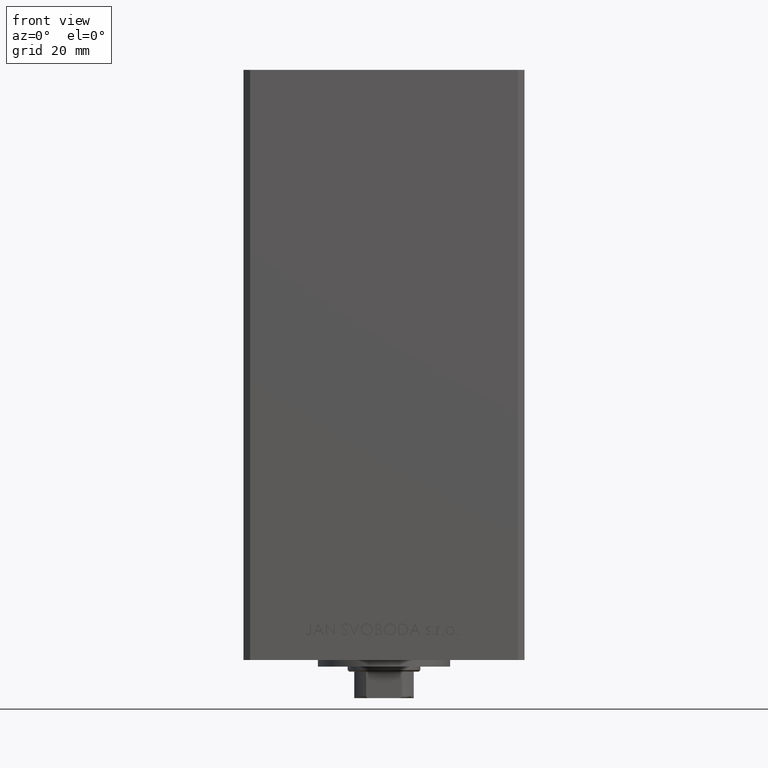
[diagram: clean part render]
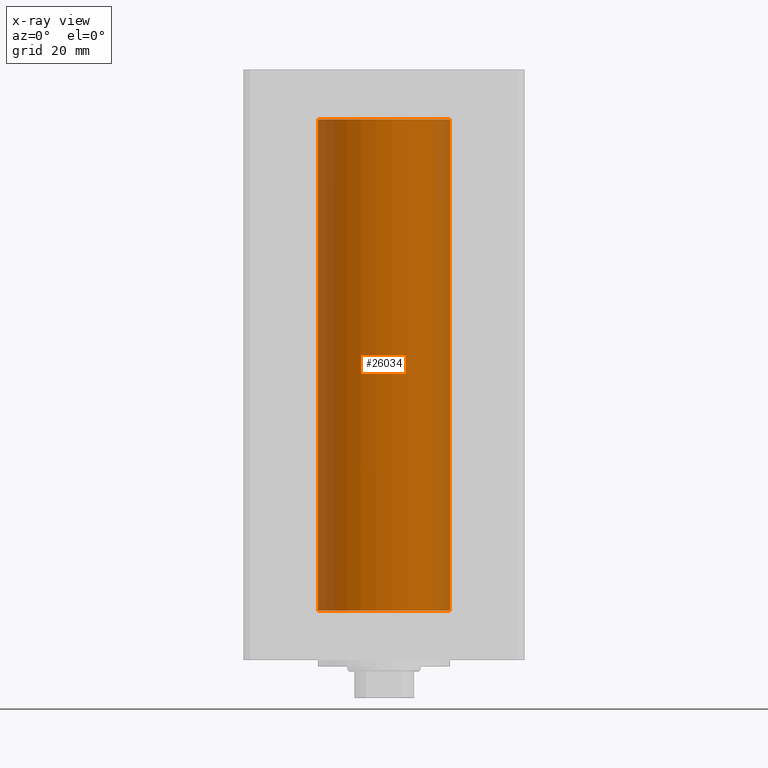
[diagram: x-ray — body ghosted, one internal face saturated and labeled with its STEP entity id]
A machine part, front view, then the same camera in x-ray: the body is ghosted and one INTERNAL B-rep face — a face not visible from any outside direction — is saturated and labeled: STEP entity #26034.
In plain terms, the highlighted cylindrical surface (partial cylindrical patch) has radius 20 mm, axis along (-0, -0, -1).
Its self-contained STEP definition (entity closure, byte-faithful):
#1171 = CIRCLE ( 'NONE', #7494, 20.00000000000000000 ) ;
#4625 = CYLINDRICAL_SURFACE ( 'NONE', #8273, 20.00000000000000000 ) ;
#5463 = CARTESIAN_POINT ( 'NONE',  ( 20.00000000000000000, 2.449293598294706513E-15, 148.5000000000000000 ) ) ;
#6032 = DIRECTION ( 'NONE',  ( -0.000000000000000000, 0.000000000000000000, 1.000000000000000000 ) ) ;
#6454 = EDGE_CURVE ( 'NONE', #19497, #32985, #27859, .T. ) ;
#6959 = CARTESIAN_POINT ( 'NONE',  ( -20.00000000000000000, 0.000000000000000000, 148.5000000000000000 ) ) ;
#7194 = DIRECTION ( 'NONE',  ( -0.000000000000000000, -0.000000000000000000, -1.000000000000000000 ) ) ;
#7494 = AXIS2_PLACEMENT_3D ( 'NONE', #26214, #11119, #30660 ) ;
#8109 = CARTESIAN_POINT ( 'NONE',  ( 0.000000000000000000, 0.000000000000000000, 148.5000000000000000 ) ) ;
#8163 = VECTOR ( 'NONE', #37984, 1000.000000000000000 ) ;
#8273 = AXIS2_PLACEMENT_3D ( 'NONE', #8109, #38290, #48698 ) ;
#9440 = CARTESIAN_POINT ( 'NONE',  ( -20.00000000000000000, 0.000000000000000000, 0.000000000000000000 ) ) ;
#10676 = LINE ( 'NONE', #6959, #26695 ) ;
#11119 = DIRECTION ( 'NONE',  ( -0.000000000000000000, 0.000000000000000000, 1.000000000000000000 ) ) ;
#11525 = LINE ( 'NONE', #12001, #8163 ) ;
#12001 = CARTESIAN_POINT ( 'NONE',  ( 20.00000000000000000, 2.449293598294706513E-15, 148.5000000000000000 ) ) ;
#14168 = CARTESIAN_POINT ( 'NONE',  ( -20.00000000000000000, 0.000000000000000000, 148.5000000000000000 ) ) ;
#17362 = VERTEX_POINT ( 'NONE', #9440 ) ;
#19237 = FACE_OUTER_BOUND ( 'NONE', #44570, .T. ) ;
#19497 = VERTEX_POINT ( 'NONE', #14168 ) ;
#20352 = VERTEX_POINT ( 'NONE', #33817 ) ;
#26034 = ADVANCED_FACE ( 'NONE', ( #19237 ), #4625, .F. ) ;
#26214 = CARTESIAN_POINT ( 'NONE',  ( 0.000000000000000000, 0.000000000000000000, 0.000000000000000000 ) ) ;
#26695 = VECTOR ( 'NONE', #7194, 1000.000000000000000 ) ;
#27088 = AXIS2_PLACEMENT_3D ( 'NONE', #44633, #6032, #47600 ) ;
#27859 = CIRCLE ( 'NONE', #27088, 20.00000000000000000 ) ;
#29220 = EDGE_CURVE ( 'NONE', #17362, #20352, #1171, .T. ) ;
#30403 = ORIENTED_EDGE ( 'NONE', *, *, #36889, .F. ) ;
#30660 = DIRECTION ( 'NONE',  ( 1.000000000000000000, 0.000000000000000000, 0.000000000000000000 ) ) ;
#32985 = VERTEX_POINT ( 'NONE', #5463 ) ;
#33817 = CARTESIAN_POINT ( 'NONE',  ( 20.00000000000000000, 2.449293598294706513E-15, 0.000000000000000000 ) ) ;
#36780 = ORIENTED_EDGE ( 'NONE', *, *, #47502, .T. ) ;
#36889 = EDGE_CURVE ( 'NONE', #19497, #17362, #10676, .T. ) ;
#37984 = DIRECTION ( 'NONE',  ( -0.000000000000000000, -0.000000000000000000, -1.000000000000000000 ) ) ;
#38290 = DIRECTION ( 'NONE',  ( -0.000000000000000000, -0.000000000000000000, -1.000000000000000000 ) ) ;
#41722 = ORIENTED_EDGE ( 'NONE', *, *, #29220, .F. ) ;
#44570 = EDGE_LOOP ( 'NONE', ( #48850, #36780, #41722, #30403 ) ) ;
#44633 = CARTESIAN_POINT ( 'NONE',  ( 0.000000000000000000, 0.000000000000000000, 148.5000000000000000 ) ) ;
#47502 = EDGE_CURVE ( 'NONE', #32985, #20352, #11525, .T. ) ;
#47600 = DIRECTION ( 'NONE',  ( 1.000000000000000000, 0.000000000000000000, 0.000000000000000000 ) ) ;
#48698 = DIRECTION ( 'NONE',  ( -1.000000000000000000, 0.000000000000000000, 0.000000000000000000 ) ) ;
#48850 = ORIENTED_EDGE ( 'NONE', *, *, #6454, .T. ) ;